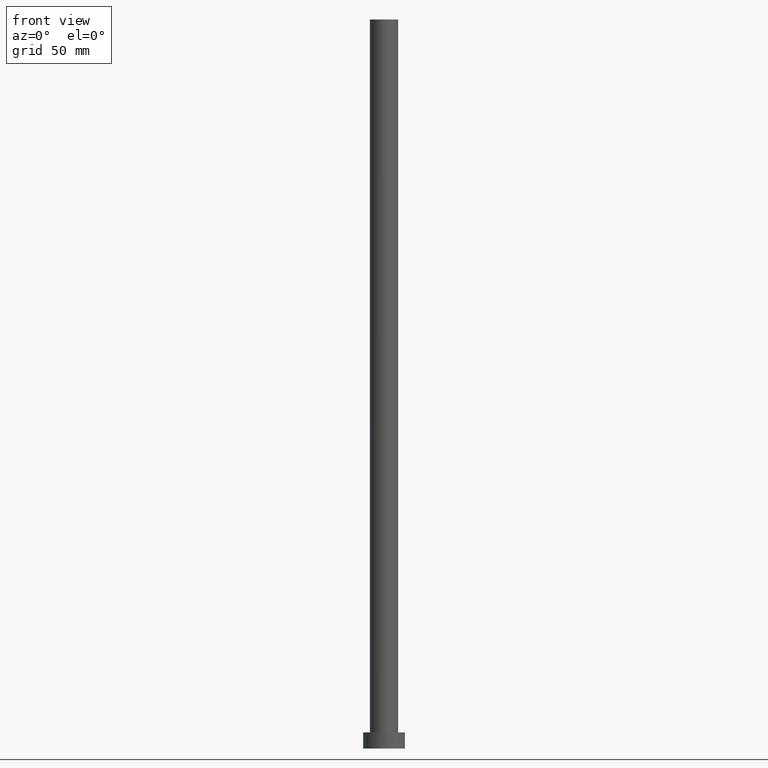
[diagram: clean part render]
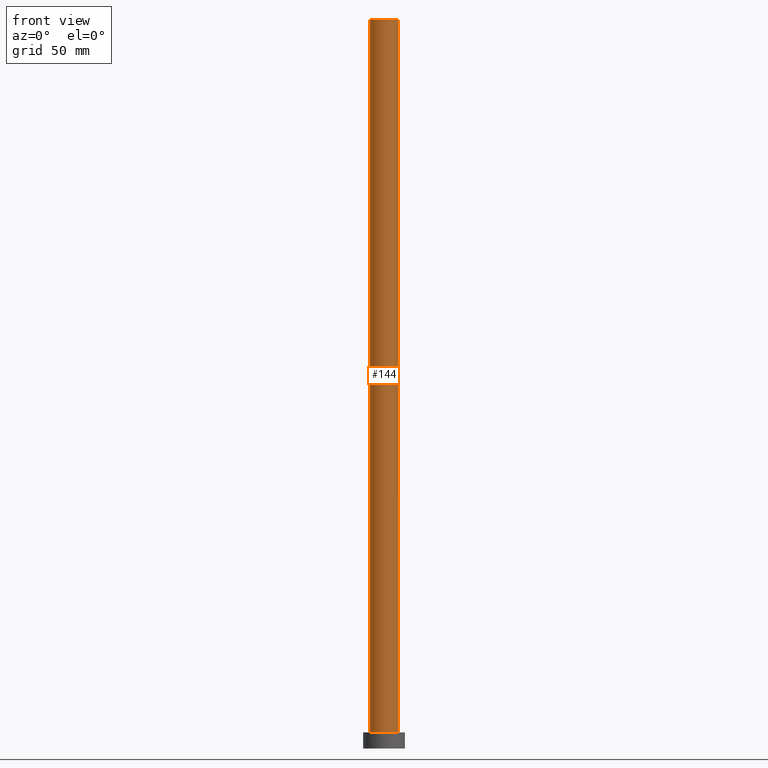
[diagram: same view with one face highlighted and labeled with its STEP entity id]
A machine part, front view. The second image highlights one B-rep face of the part: STEP entity #144.
In plain terms, the highlighted cylindrical surface (edge-blend (fillet) strip) has radius 6.1 mm, axis along (-0, -0, -1).
Its self-contained STEP definition (entity closure, byte-faithful):
#5 = CARTESIAN_POINT ( 'NONE',  ( 0.000000000000000000, 0.000000000000000000, 315.0000000000000000 ) ) ;
#8 = VERTEX_POINT ( 'NONE', #78 ) ;
#21 = ORIENTED_EDGE ( 'NONE', *, *, #128, .F. ) ;
#25 = CIRCLE ( 'NONE', #204, 6.099999999999999645 ) ;
#27 = EDGE_CURVE ( 'NONE', #201, #110, #73, .T. ) ;
#31 = DIRECTION ( 'NONE',  ( 1.000000000000000000, 0.000000000000000000, 0.000000000000000000 ) ) ;
#34 = DIRECTION ( 'NONE',  ( -0.000000000000000000, -0.000000000000000000, -1.000000000000000000 ) ) ;
#38 = EDGE_LOOP ( 'NONE', ( #190, #21, #123, #145 ) ) ;
#49 = CARTESIAN_POINT ( 'NONE',  ( 0.000000000000000000, 0.000000000000000000, 315.0000000000000000 ) ) ;
#50 = DIRECTION ( 'NONE',  ( -1.000000000000000000, 0.000000000000000000, 0.000000000000000000 ) ) ;
#73 = LINE ( 'NONE', #134, #172 ) ;
#74 = VERTEX_POINT ( 'NONE', #113 ) ;
#78 = CARTESIAN_POINT ( 'NONE',  ( 6.099999999999999645, 7.470345474798854293E-16, 7.000000000000000000 ) ) ;
#89 = DIRECTION ( 'NONE',  ( 0.000000000000000000, 0.000000000000000000, 1.000000000000000000 ) ) ;
#95 = CARTESIAN_POINT ( 'NONE',  ( -6.099999999999999645, 0.000000000000000000, 7.000000000000000000 ) ) ;
#100 = DIRECTION ( 'NONE',  ( 0.000000000000000000, 0.000000000000000000, 1.000000000000000000 ) ) ;
#105 = CIRCLE ( 'NONE', #200, 6.099999999999999645 ) ;
#110 = VERTEX_POINT ( 'NONE', #95 ) ;
#113 = CARTESIAN_POINT ( 'NONE',  ( 6.099999999999999645, 7.470345474798854293E-16, 315.0000000000000000 ) ) ;
#116 = VECTOR ( 'NONE', #34, 1000.000000000000000 ) ;
#122 = AXIS2_PLACEMENT_3D ( 'NONE', #49, #184, #50 ) ;
#123 = ORIENTED_EDGE ( 'NONE', *, *, #27, .T. ) ;
#127 = LINE ( 'NONE', #252, #116 ) ;
#128 = EDGE_CURVE ( 'NONE', #201, #74, #25, .T. ) ;
#134 = CARTESIAN_POINT ( 'NONE',  ( -6.099999999999999645, 0.000000000000000000, 315.0000000000000000 ) ) ;
#140 = DIRECTION ( 'NONE',  ( -0.000000000000000000, -0.000000000000000000, -1.000000000000000000 ) ) ;
#144 = ADVANCED_FACE ( 'NONE', ( #221 ), #183, .T. ) ;
#145 = ORIENTED_EDGE ( 'NONE', *, *, #241, .T. ) ;
#172 = VECTOR ( 'NONE', #140, 1000.000000000000000 ) ;
#183 = CYLINDRICAL_SURFACE ( 'NONE', #122, 6.099999999999999645 ) ;
#184 = DIRECTION ( 'NONE',  ( -0.000000000000000000, -0.000000000000000000, -1.000000000000000000 ) ) ;
#189 = CARTESIAN_POINT ( 'NONE',  ( 0.000000000000000000, 0.000000000000000000, 7.000000000000000000 ) ) ;
#190 = ORIENTED_EDGE ( 'NONE', *, *, #193, .F. ) ;
#193 = EDGE_CURVE ( 'NONE', #74, #8, #127, .T. ) ;
#200 = AXIS2_PLACEMENT_3D ( 'NONE', #189, #89, #228 ) ;
#201 = VERTEX_POINT ( 'NONE', #246 ) ;
#204 = AXIS2_PLACEMENT_3D ( 'NONE', #5, #100, #31 ) ;
#221 = FACE_OUTER_BOUND ( 'NONE', #38, .T. ) ;
#228 = DIRECTION ( 'NONE',  ( 1.000000000000000000, 0.000000000000000000, 0.000000000000000000 ) ) ;
#241 = EDGE_CURVE ( 'NONE', #110, #8, #105, .T. ) ;
#246 = CARTESIAN_POINT ( 'NONE',  ( -6.099999999999999645, 0.000000000000000000, 315.0000000000000000 ) ) ;
#252 = CARTESIAN_POINT ( 'NONE',  ( 6.099999999999999645, 7.470345474798854293E-16, 315.0000000000000000 ) ) ;